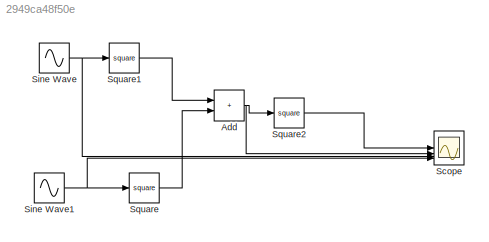
MODEL slx_2949ca48f50e
KIND model
CONFIG AbsTol = auto
CONFIG EnableMultiTasking = off
CONFIG FixedStep = auto
CONFIG MaxStep = auto
CONFIG MinStep = auto
CONFIG RelTol = 1e-3
CONFIG SampleTimeConstraint = Unconstrained
CONFIG SolverName = VariableStepAuto
CONFIG StartTime = 0.0
CONFIG StopTime = 10.0
BLOCK [Sum] Add
  IconShape = rectangular
BLOCK [Scope] Scope
  Floating = off
  NumInputPorts = 4
  ScopeSpecificationString = Simulink.scopes.TimeScopeBlockCfg('CurrentConfiguration', extmgr.ConfigurationSet(extmgr.Configuration('Core','General UI',true),extmgr.Configuration('Core','Source UI',true),extmgr.Configuration('Sources','WiredSimulink',true),extmgr.Configuration('Visuals','Time Domain',true,'SerializedDisplays',{struct('MinYLimReal','-2.0114','MaxYLimReal','10.06034','YLabelReal','','MinYLimMag','0.00000','MaxY...<+3463ch>
BLOCK [Sin] Sine Wave
  Frequency = 2*pi*20
  SampleTime = 1/200
BLOCK [Sin] Sine Wave1
  Frequency = 2*pi*30
  SampleTime = 0
BLOCK [Math] Square
  Operator = square
BLOCK [Math] Square1
  Operator = square
BLOCK [Math] Square2
  Operator = square
NET Add:1 -> Scope:2, Square2:1
NET Sine Wave1:1 -> Scope:4, Square:1
NET Sine Wave:1 -> Scope:3, Square1:1
LINE Square1:1 -> Add:1
LINE Square2:1 -> Scope:1
LINE Square:1 -> Add:2
note: NET lines group one-source signal fan-out (src -> all destinations, sorted); 1:1 wires keep LINE
